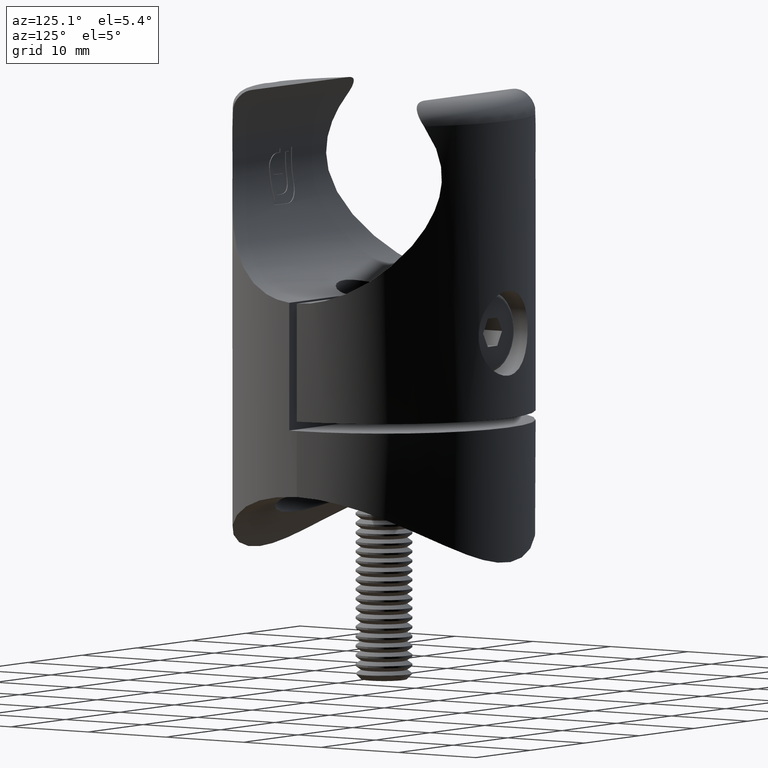
[diagram: clean part render]
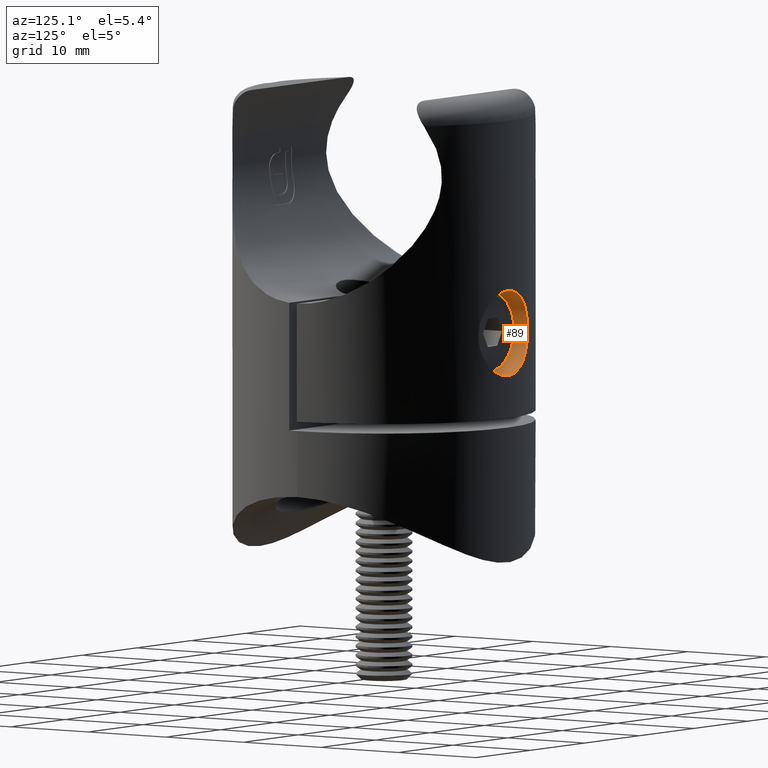
[diagram: same view with one face highlighted and labeled with its STEP entity id]
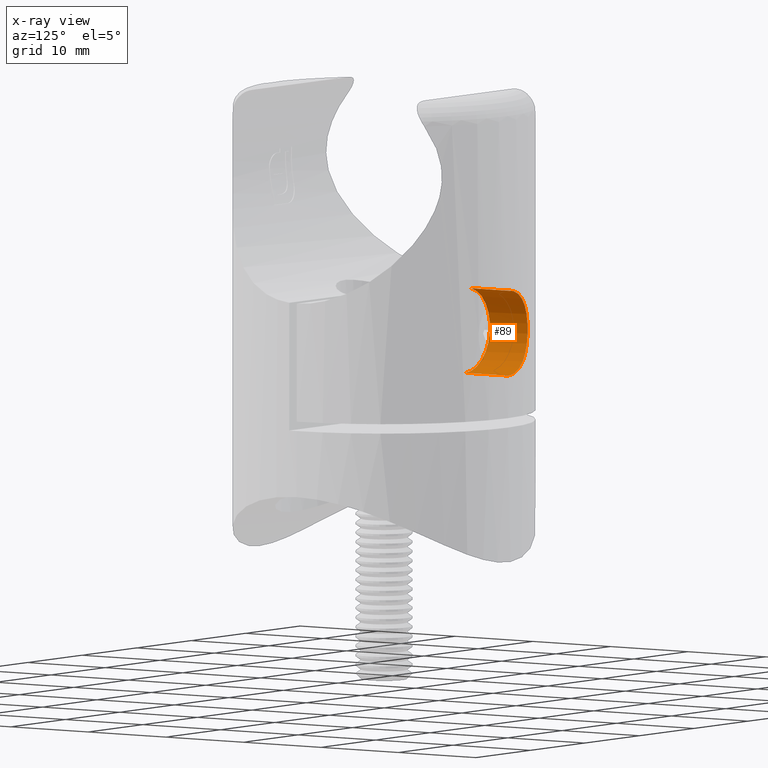
[diagram: x-ray of the same camera — body ghosted, the highlighted face saturated]
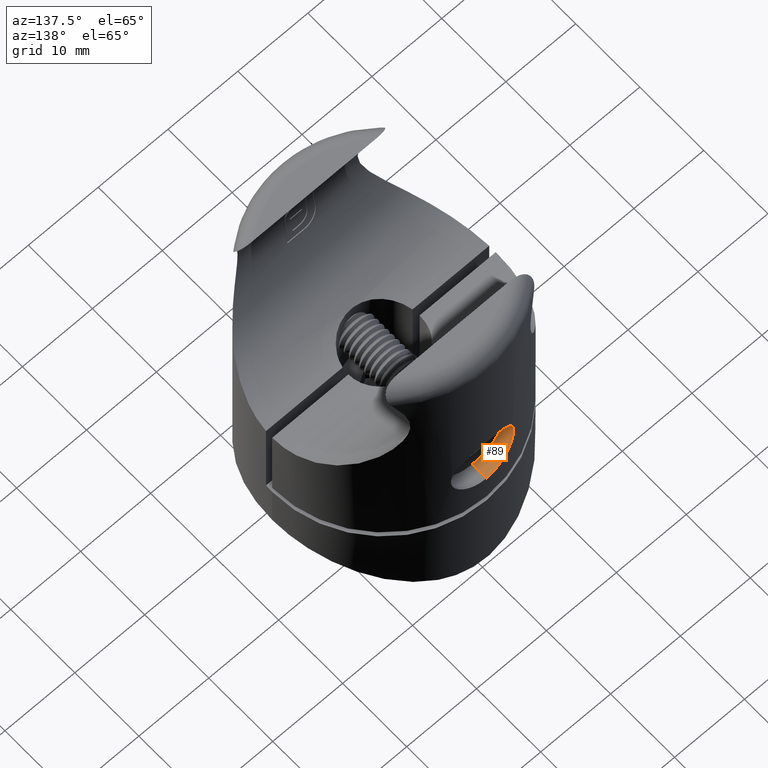
[diagram: same view with one face highlighted and labeled with its STEP entity id]
A machine part, auxiliary view. The second image highlights one B-rep face of the part: STEP entity #89.
The next image is the same camera in x-ray: the body ghosted, the highlighted face saturated — about 1% of this face is hidden behind the body in this view.
A second angle (auxiliary view) of the same face is appended — the face is thin or edge-on in the first view.
In plain terms, the highlighted cylindrical surface (partial cylindrical patch) has radius 4.5 mm, axis along (0, 1, 0).
Its self-contained STEP definition (entity closure, byte-faithful):
#34 = CARTESIAN_POINT ( 'NONE',  ( -3.902065496293175784, 15.51779141423327602, 7.739619525508784292 ) ) ;
#89 = ADVANCED_FACE ( 'NONE', ( #7619 ), #8609, .F. ) ;
#846 = VERTEX_POINT ( 'NONE', #24728 ) ;
#1066 = B_SPLINE_CURVE_WITH_KNOTS ( 'NONE', 3,
 ( #12890, #23474, #14974, #25633, #10640, #12711, #4285, #8644, #19421, #27799, #1928, #21402, #4188, #19248, #6470, #4097, #21579, #10825, #6292, #8454, #6659, #2015, #34, #8741, #23855, #23568, #27975, #21673, #25715, #17145, #12801, #27883, #19514, #6377 ),
 .UNSPECIFIED., .F., .F.,
 ( 4, 2, 2, 2, 2, 2, 2, 2, 2, 2, 2, 2, 2, 2, 2, 2, 4 ),
 ( 2.383781100293090755E-19, 0.0008837956790053034173, 0.001767591358010606618, 0.002651387037015910143, 0.003535182716021213235, 0.004418978395026516327, 0.005302774074031819419, 0.006186569753037122511, 0.007070365432042425603, 0.007954161111047729563, 0.008837956790053032655, 0.009721752469058335747, 0.01060554814806363884, 0.01148934382706894193, 0.01237313950607424502, 0.01325693518507954811, 0.01414073086408485121 ),
 .UNSPECIFIED. ) ;
#1928 = CARTESIAN_POINT ( 'NONE',  ( -3.575150331941701953, 15.59637493314189705, 12.74876730510257872 ) ) ;
#2015 = CARTESIAN_POINT ( 'NONE',  ( -4.042201156327106304, 15.48142227708091490, 8.000442465180038099 ) ) ;
#4097 = CARTESIAN_POINT ( 'NONE',  ( -4.470974094993228398, 15.36274842223263981, 10.59019888951918986 ) ) ;
#4188 = CARTESIAN_POINT ( 'NONE',  ( -4.042791598176965095, 15.48125931419091295, 11.99790065648842408 ) ) ;
#4192 = ORIENTED_EDGE ( 'NONE', *, *, #12351, .F. ) ;
#4285 = CARTESIAN_POINT ( 'NONE',  ( -2.258830066451059881, 15.84167710183783484, 13.90306468645267479 ) ) ;
#4598 = DIRECTION ( 'NONE',  ( 0.000000000000000000, 0.000000000000000000, 1.000000000000000000 ) ) ;
#6292 = CARTESIAN_POINT ( 'NONE',  ( -4.470477054757172830, 15.36289212449591446, 9.406856706955352365 ) ) ;
#6336 = AXIS2_PLACEMENT_3D ( 'NONE', #23449, #15038, #16937 ) ;
#6377 = CARTESIAN_POINT ( 'NONE',  ( 5.511083051830061701E-16, 16.00000000000000000, 5.500000000000002665 ) ) ;
#6470 = CARTESIAN_POINT ( 'NONE',  ( -4.354855063737144150, 15.39606721915551546, 11.17182825581788030 ) ) ;
#6659 = CARTESIAN_POINT ( 'NONE',  ( -4.269297497618253168, 15.42034126685723194, 8.547168488744128823 ) ) ;
#6777 = DIRECTION ( 'NONE',  ( -0.000000000000000000, 1.000000000000000000, -0.000000000000000000 ) ) ;
#6948 = VECTOR ( 'NONE', #7128, 1000.000000000000000 ) ;
#7128 = DIRECTION ( 'NONE',  ( -0.000000000000000000, 1.000000000000000000, -0.000000000000000000 ) ) ;
#7307 = VERTEX_POINT ( 'NONE', #17263 ) ;
#7619 = FACE_OUTER_BOUND ( 'NONE', #11505, .T. ) ;
#7725 = EDGE_CURVE ( 'NONE', #7307, #846, #1066, .T. ) ;
#8454 = CARTESIAN_POINT ( 'NONE',  ( -4.354818532563196065, 15.39607661303531927, 8.828445642900705437 ) ) ;
#8609 = CYLINDRICAL_SURFACE ( 'NONE', #24177, 4.500000000000000888 ) ;
#8644 = CARTESIAN_POINT ( 'NONE',  ( -2.746899132706512425, 15.76437730526431302, 13.57641893106406528 ) ) ;
#8650 = ORIENTED_EDGE ( 'NONE', *, *, #7725, .F. ) ;
#8741 = CARTESIAN_POINT ( 'NONE',  ( -3.576870550103499191, 15.59595981595284542, 7.253833199780985730 ) ) ;
#10640 = CARTESIAN_POINT ( 'NONE',  ( -1.456557122913251012, 15.93591525253598640, 14.26794391814805607 ) ) ;
#10825 = CARTESIAN_POINT ( 'NONE',  ( -4.500130102589911196, 15.35411440227892932, 9.706795514026188343 ) ) ;
#11505 = EDGE_LOOP ( 'NONE', ( #4192, #22040, #8650, #23102 ) ) ;
#12351 = EDGE_CURVE ( 'NONE', #24424, #19255, #18155, .T. ) ;
#12711 = CARTESIAN_POINT ( 'NONE',  ( -2.000904768754493634, 15.87675450760306006, 14.04144578673793831 ) ) ;
#12801 = CARTESIAN_POINT ( 'NONE',  ( -1.173930842681988107, 15.95952437200837437, 5.645744595285995260 ) ) ;
#12890 = CARTESIAN_POINT ( 'NONE',  ( 2.454736642983292814E-16, 16.00000000000000000, 14.50000000000000178 ) ) ;
#13646 = LINE ( 'NONE', #15154, #24778 ) ;
#14460 = CARTESIAN_POINT ( 'NONE',  ( 5.510910596163088569E-16, 10.50000000000000000, 5.500000000000002665 ) ) ;
#14974 = CARTESIAN_POINT ( 'NONE',  ( -0.5926130897939660969, 15.99163446318129722, 14.47050798930713889 ) ) ;
#15038 = DIRECTION ( 'NONE',  ( 0.000000000000000000, 1.000000000000000000, 0.000000000000000000 ) ) ;
#15154 = CARTESIAN_POINT ( 'NONE',  ( 0.000000000000000000, 10.50000000000000000, 14.50000000000000178 ) ) ;
#16937 = DIRECTION ( 'NONE',  ( 0.000000000000000000, 0.000000000000000000, 1.000000000000000000 ) ) ;
#17145 = CARTESIAN_POINT ( 'NONE',  ( -1.454622980416138356, 15.93607834708522830, 5.731460349063508097 ) ) ;
#17263 = CARTESIAN_POINT ( 'NONE',  ( 2.454736642983292814E-16, 16.00000000000000000, 14.50000000000000178 ) ) ;
#18155 = CIRCLE ( 'NONE', #6336, 4.500000000000000888 ) ;
#19248 = CARTESIAN_POINT ( 'NONE',  ( -4.267644650793014804, 15.42078996011783509, 11.45704498010352346 ) ) ;
#19255 = VERTEX_POINT ( 'NONE', #21384 ) ;
#19421 = CARTESIAN_POINT ( 'NONE',  ( -2.976725820875425477, 15.72206864965412443, 13.38737823867441357 ) ) ;
#19514 = CARTESIAN_POINT ( 'NONE',  ( -0.2946302753702613741, 16.00000000000000355, 5.500000000000001776 ) ) ;
#21384 = CARTESIAN_POINT ( 'NONE',  ( 0.000000000000000000, 10.50000000000000000, 14.50000000000000178 ) ) ;
#21402 = CARTESIAN_POINT ( 'NONE',  ( -3.904075849368570772, 15.51730655473097364, 12.25734652987990358 ) ) ;
#21579 = CARTESIAN_POINT ( 'NONE',  ( -4.499869017373979041, 15.35419092121049900, 10.29718451727639561 ) ) ;
#21673 = CARTESIAN_POINT ( 'NONE',  ( -2.261050325267808692, 15.84134696056631242, 6.098292870964088230 ) ) ;
#22040 = ORIENTED_EDGE ( 'NONE', *, *, #25551, .T. ) ;
#22429 = CARTESIAN_POINT ( 'NONE',  ( 5.510910596163088569E-16, 10.50000000000000000, 5.500000000000002665 ) ) ;
#22480 = LINE ( 'NONE', #22429, #6948 ) ;
#23102 = ORIENTED_EDGE ( 'NONE', *, *, #27234, .F. ) ;
#23449 = CARTESIAN_POINT ( 'NONE',  ( 0.000000000000000000, 10.50000000000000000, 10.00000000000000178 ) ) ;
#23474 = CARTESIAN_POINT ( 'NONE',  ( -0.2989509142321738477, 15.99999999999999645, 14.50000000000000533 ) ) ;
#23568 = CARTESIAN_POINT ( 'NONE',  ( -2.973027056541973856, 15.72279133147585028, 6.609187100698719952 ) ) ;
#23855 = CARTESIAN_POINT ( 'NONE',  ( -3.389085333498123465, 15.63838731245427383, 7.025003764831548203 ) ) ;
#24150 = CARTESIAN_POINT ( 'NONE',  ( 0.000000000000000000, 10.50000000000000000, 10.00000000000000178 ) ) ;
#24177 = AXIS2_PLACEMENT_3D ( 'NONE', #24150, #6777, #4598 ) ;
#24424 = VERTEX_POINT ( 'NONE', #14460 ) ;
#24728 = CARTESIAN_POINT ( 'NONE',  ( 5.511083051830061701E-16, 16.00000000000000000, 5.500000000000002665 ) ) ;
#24778 = VECTOR ( 'NONE', #26191, 1000.000000000000000 ) ;
#25551 = EDGE_CURVE ( 'NONE', #24424, #846, #22480, .T. ) ;
#25633 = CARTESIAN_POINT ( 'NONE',  ( -1.169881079338529251, 15.95979139395025115, 14.35522791790048736 ) ) ;
#25715 = CARTESIAN_POINT ( 'NONE',  ( -1.997407950187251036, 15.87718119126069460, 5.956892253810130100 ) ) ;
#26191 = DIRECTION ( 'NONE',  ( -0.000000000000000000, 1.000000000000000000, -0.000000000000000000 ) ) ;
#27234 = EDGE_CURVE ( 'NONE', #19255, #7307, #13646, .T. ) ;
#27799 = CARTESIAN_POINT ( 'NONE',  ( -3.389445422219382387, 15.63828631810083181, 12.97437181171209630 ) ) ;
#27883 = CARTESIAN_POINT ( 'NONE',  ( -0.5933312185977985820, 15.99163812338081136, 5.529472982083833976 ) ) ;
#27975 = CARTESIAN_POINT ( 'NONE',  ( -2.747412545718097121, 15.76427436966472762, 6.424053775880555150 ) ) ;